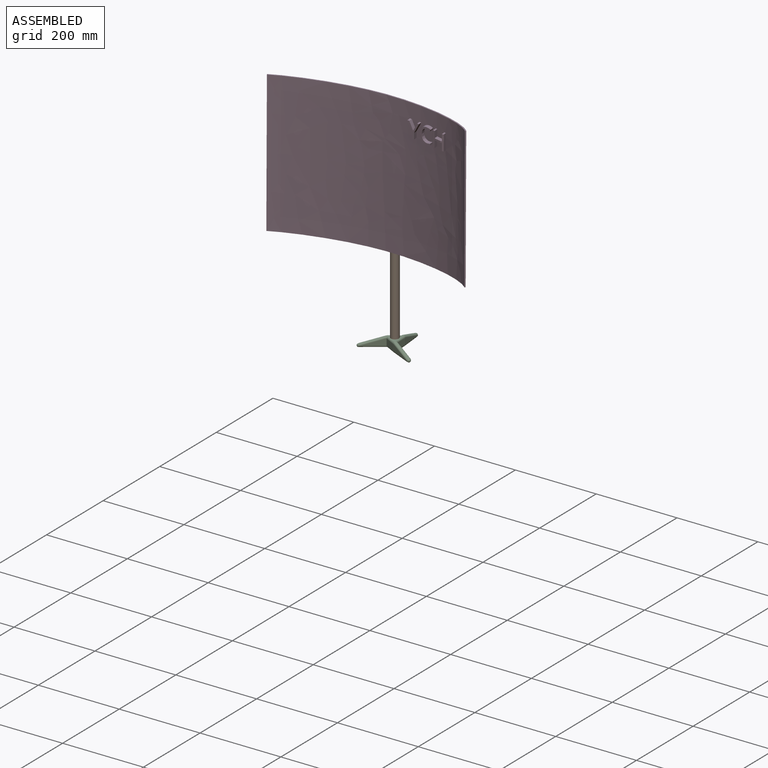
[diagram: assembled view]
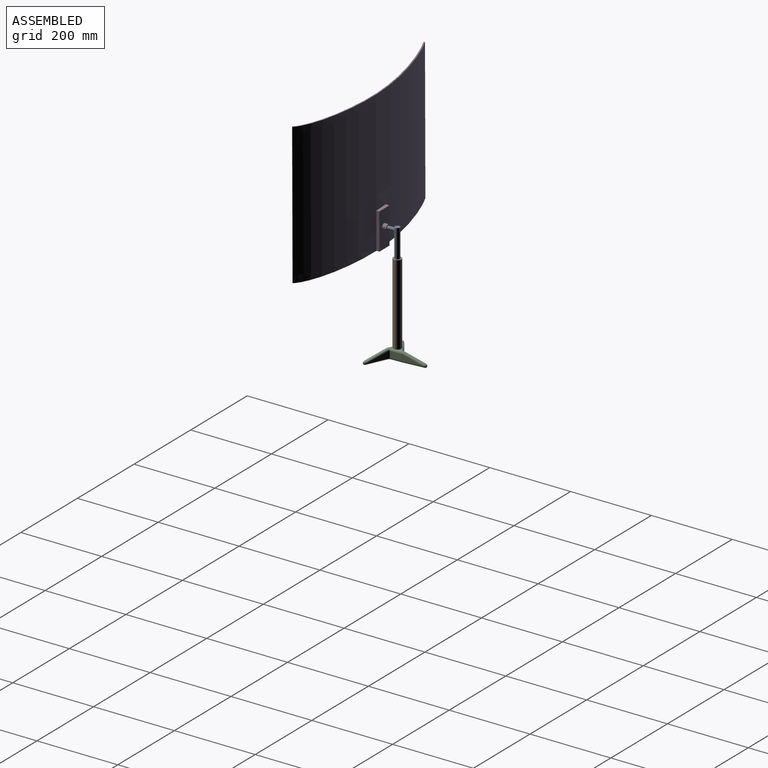
[diagram: assembled view, second angle]
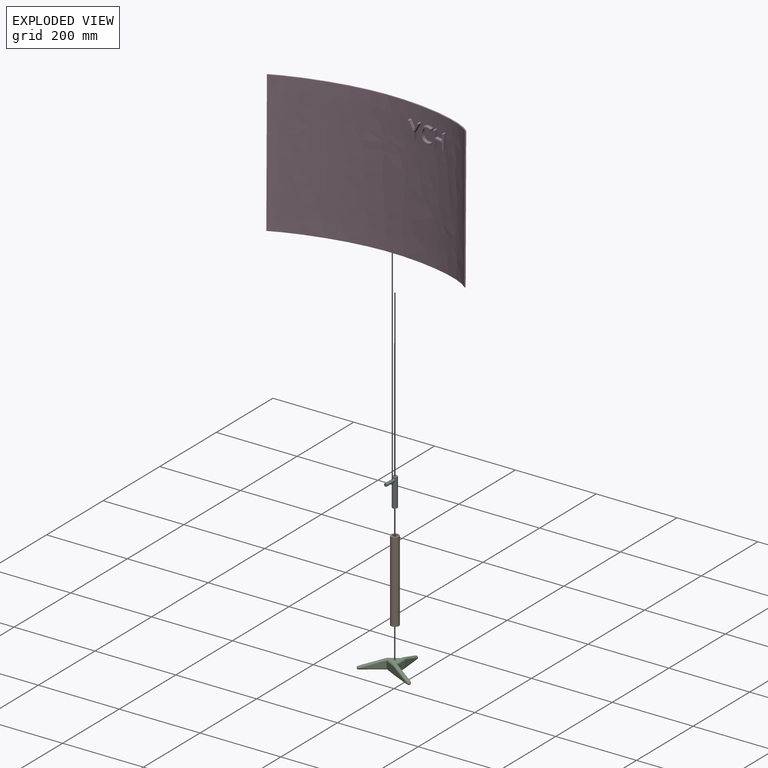
[diagram: exploded view]
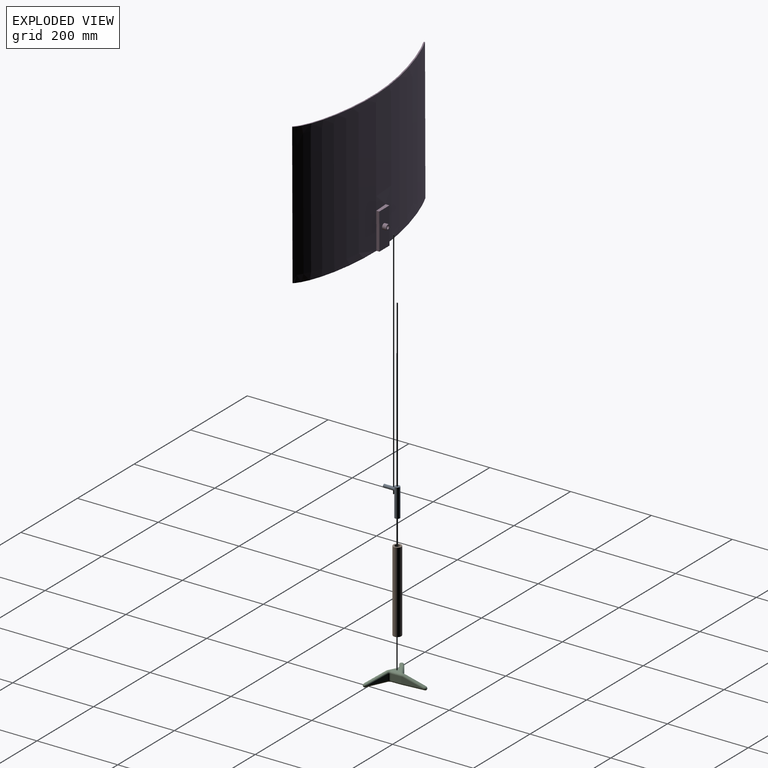
[diagram: exploded view, second angle]
ASSEMBLY  parts=4 mates=3
PART A: 5 faces, bbox 12.5x39.2x70 mm
  f0: cylinder r=6.25mm len=70mm, axis (0,0,-1), area 2695.4mm2, adj f1,f2,f4
  f1: plane 12.5x12.5mm, normal (0,0,1), area 122.7mm2, adj f0
  f2: plane 12.5x12.5mm, normal (0,0,-1), area 122.7mm2, adj f0
  f3: plane 8x8mm, normal (0,-1,0), area 50.3mm2, adj f4
  f4: cylinder r=4mm len=28.2mm, axis (0,-1,0), area 689.8mm2, adj f0,f3
PART B: 4 faces, bbox 20x20x200 mm
  f0: cylinder r=6.25mm len=200mm, axis (0,0,1), area 7854mm2, adj f2,f3
  f1: cylinder r=10mm len=200mm, axis (0,0,1), area 12566.4mm2, adj f2,f3
  f2: plane 20x20mm, normal (0,0,-1), area 191.4mm2, adj f0,f1
  f3: plane 20x20mm, normal (0,0,1), area 191.4mm2, adj f0,f1
PART C: 59 faces, bbox 136.8x119.8x27.5 mm
  f0: cylinder r=5mm len=4.71mm, axis (-0.09,1,0), area 9.1mm2, adj f2,f29,f56
  f1: plane 50.26x15mm, normal (-1,-0.09,0), area 402.1mm2, adj f3,f16,f24,f55
  f2: plane 50.11x15mm, normal (1,0.09,0), area 399.8mm2, adj f0,f24,f31,f58
  f3: cylinder r=5mm len=6.6mm, axis (-0.09,1,0), area 17.4mm2, adj f1,f15,f27,f52,f53
  f4: plane 47x21.5mm, normal (-0.42,-0.91,0), area 407.1mm2, adj f7,f17,f20,f47
  f5: plane 44.19x20.22mm, normal (0.42,0.91,0), area 360.8mm2, adj f20,f23,f44
  f6: plane 29.01x27.1mm, normal (0,0,1), area 340.9mm2, adj f8,f9,f15,f27,f50
  f7: cylinder r=5mm len=3.83mm, axis (-0.91,0.42,0), area 5.8mm2, adj f4,f8,f49,f51
  f8: cylinder r=5mm len=30.16mm, axis (-0.88,0.47,0), area 229.9mm2, adj f6,f7,f10,f14,f15,f17,f34,f51
  f9: torus R=10mm, axis (0,0,1), area 43.3mm2, adj f6,f23,f27,f48
  f10: cylinder r=5mm len=2.9mm, axis (-0.81,-0.58,0), area 3.6mm2, adj f8,f12,f36
  f11: plane 38.69x27.51mm, normal (-0.58,0.81,0), area 337.1mm2, adj f21,f32,f41
  f12: plane 42.77x30.41mm, normal (0.58,-0.81,0), area 411.1mm2, adj f10,f17,f21,f38
  f13: cylinder r=5mm len=1.3mm, axis (-0.81,-0.58,0), area 0.8mm2, adj f15,f32,f37,f39
  f14: cylinder r=5mm len=0.78mm, axis (-0.81,-0.58,0), area 0.1mm2, adj f8,f15,f35,f37
  f15: cylinder r=5mm len=29.36mm, axis (0.85,0.53,0), area 217.3mm2, adj f3,f6,f8,f13,f14,f16,f27,f32
  f16: plane 19.9x15mm, normal (-0.53,0.85,0), area 352mm2, adj f1,f15,f25,f32
  f17: plane 25.14x15mm, normal (-0.47,-0.88,0), area 427mm2, adj f4,f8,f12,f22
  f18: plane 25.22x15mm, normal (1,0.04,0), area 378.5mm2, adj f23,f27,f28,f31
  f19: plane 30.62x30.21mm, normal (0,0,-1), area 341.8mm2, adj f20,f22,f25,f26,f28
  f20: cylinder r=5mm len=54.14mm, axis (0.91,-0.42,0), area 819.7mm2, adj f4,f5,f19,f22,f26,f45
  f21: cylinder r=5mm len=55.13mm, axis (-0.81,-0.58,0), area 882.7mm2, adj f11,f12,f22,f25,f32,f40
  f22: cylinder r=5mm len=30.16mm, axis (0.88,-0.47,0), area 231.8mm2, adj f17,f19,f20,f21,f25
  f23: cylinder r=5mm len=15mm, axis (0,0,1), area 83mm2, adj f5,f9,f18,f26,f46
  f24: cylinder r=5mm len=57.37mm, axis (0.09,-1,0), area 835.3mm2, adj f1,f2,f25,f28,f30,f57
  f25: cylinder r=5mm len=29.36mm, axis (-0.85,-0.53,0), area 227.7mm2, adj f16,f19,f21,f22,f24,f28,f32
  f26: torus R=10mm, axis (0,0,1), area 59.3mm2, adj f19,f20,f23,f28
  f27: cylinder r=5mm len=25.39mm, axis (0.04,-1,0), area 197.9mm2, adj f3,f6,f9,f15,f18,f29,f52
  f28: cylinder r=5mm len=25.39mm, axis (-0.04,1,0), area 198mm2, adj f18,f19,f24,f25,f26,f30
  f29: sphere r=5mm, area 1.4mm2, adj f0,f27,f31,f54
  f30: sphere r=5mm, area 1.5mm2, adj f24,f28,f31
  f31: cylinder r=5mm len=15mm, axis (0,0,1), area 4.5mm2, adj f2,f18,f29,f30
  f32: plane 19.91x10.8mm, normal (-0.56,0.83,0), area 164.8mm2, adj f11,f13,f15,f16,f21,f25,f39,f41
  f33: plane 49.3x35.32mm, normal (-0.23,-0.17,0.96), area 181.5mm2, adj f34,f35,f36,f37,f38,f39,f40,f41
  f34: bspline ~4.45x2.55mm, area 6.1mm2, adj f8,f33,f35,f36
  f35: bspline ~1.19x0.73mm, area 0.4mm2, adj f14,f33,f34,f37
  f36: bspline ~6.22x5.59mm, area 15.4mm2, adj f10,f33,f34,f38
  f37: bspline ~4.87x3.31mm, area 11.3mm2, adj f13,f14,f15,f33,f35,f39
  f38: cylinder r=3.5mm len=43.71mm, axis (-0.78,-0.56,-0.29), area 287.7mm2, adj f12,f33,f36,f40
  f39: bspline ~4.31x4.04mm, area 12.1mm2, adj f13,f32,f33,f37,f41
  f40: bspline ~10.64x10.44mm, area 155.8mm2, adj f21,f33,f38,f41
  f41: cylinder r=3.5mm len=42.23mm, axis (0.78,0.56,0.29), area 286.7mm2, adj f11,f32,f33,f39,f40
  f42: plane 50.62x24.27mm, normal (0.27,-0.12,0.96), area 114.4mm2, adj f44,f45,f46,f47,f48,f49,f50,f51
  f43: plane 53.44x17mm, normal (-0.03,0.3,0.95), area 109.8mm2, adj f52,f53,f54,f55,f56,f57,f58
  f44: cylinder r=4mm len=45.1mm, axis (0.87,-0.4,-0.29), area 319.3mm2, adj f5,f42,f45,f46
  f45: bspline ~10.17x8.97mm, area 155.4mm2, adj f20,f42,f44,f47
  f46: bspline ~4.24x3.97mm, area 2.4mm2, adj f23,f42,f44,f48
  f47: cylinder r=4mm len=47.36mm, axis (-0.87,0.4,0.29), area 322.5mm2, adj f4,f42,f45,f49
  f48: bspline ~7x5.98mm, area 15.4mm2, adj f9,f42,f46,f50
  f49: bspline ~4.61x4.52mm, area 15.5mm2, adj f7,f42,f47,f51
  f50: cylinder r=4mm len=1.35mm, axis (0.42,0.91,0), area 0.8mm2, adj f6,f42,f48,f51
  f51: bspline ~3.78x2.46mm, area 4.3mm2, adj f7,f8,f42,f49,f50
  f52: bspline ~1.7x1.4mm, area 1.4mm2, adj f3,f27,f43,f53,f54
  f53: bspline ~5.27x5mm, area 19.3mm2, adj f3,f43,f52,f55
  f54: torus R=0.44mm, axis (-0.03,0.3,0.95), area 0.1mm2, adj f29,f43,f52,f56
  f55: cylinder r=4mm len=48.73mm, axis (-0.09,0.95,-0.3), area 312.1mm2, adj f1,f43,f53,f57
  f56: bspline ~4.83x4.49mm, area 17.8mm2, adj f0,f43,f54,f58
  f57: bspline ~10.02x8.81mm, area 153.3mm2, adj f24,f43,f55,f58
  f58: cylinder r=4mm len=48.03mm, axis (0.09,-0.95,0.3), area 312.1mm2, adj f2,f43,f56,f57
PART D: 54 faces, bbox 369.1x315.7x350.1 mm
  f0: extruded ~366.06x350mm, area 173950.5mm2, adj f2,f3,f4,f5,f14,f15,f16,f17
  f1: extruded ~368.33x350mm, area 173149.9mm2, adj f2,f3,f4,f5,f6,f8,f9
  f2: plane 350x2.91mm, normal (-0.97,0.24,0), area 1050mm2, adj f0,f1,f4,f5
  f3: plane 350x3mm, normal (0,-1,0), area 1050mm2, adj f0,f1,f4,f5
  f4: plane 369.06x315.67mm, normal (0,0,1), area 1504.1mm2, adj f0,f1,f2,f3
  f5: plane 369.06x315.67mm, normal (0,0,-1), area 1796.8mm2, adj f0,f1,f2,f3,f6,f7,f8
  f6: plane 90x5.53mm, normal (0.74,-0.67,0), area 668.9mm2, adj f1,f5,f7,f9
  f7: plane 90x26.63mm, normal (0.67,0.74,0), area 3073mm2, adj f5,f6,f8,f9,f11
  f8: plane 90x6.79mm, normal (-0.73,0.68,0), area 836.6mm2, adj f1,f5,f7,f9
  f9: plane 32.99x29.45mm, normal (0,0,1), area 292.7mm2, adj f1,f6,f7,f8
  f10: cylinder r=4mm len=12.79mm, axis (-0.67,-0.74,0), area 251.3mm2, adj f12,f13
  f11: cylinder r=6.86mm len=16.89mm, axis (-0.67,-0.74,0), area 431mm2, adj f7,f12
  f12: plane 13.72x10.21mm, normal (0.67,0.74,0), area 97.6mm2, adj f10,f11
  f13: plane 8x5.95mm, normal (0.67,0.74,0), area 50.3mm2, adj f10
  f14: plane 19.14x15.65mm, normal (0.71,-0.53,0.47), area 219.5mm2, adj f0,f15,f22,f53
  f15: plane 11.65x9.5mm, normal (0,0,1), area 49.2mm2, adj f0,f14,f16,f53
  f16: plane 23.65x17.54mm, normal (-0.7,0.53,-0.47), area 271.9mm2, adj f0,f15,f17,f53
  f17: plane 14.61x8.12mm, normal (-0.8,0.6,0), area 148.4mm2, adj f0,f16,f18,f53
  f18: plane 11.49x9.21mm, normal (0,0,-1), area 45.7mm2, adj f0,f17,f19,f53
  f19: plane 14.82x8.13mm, normal (0.8,-0.6,0), area 150.8mm2, adj f0,f18,f20,f53
  f20: plane 23.46x17.93mm, normal (0.7,-0.53,-0.48), area 271.7mm2, adj f0,f19,f21,f53
  f21: plane 11.85x9.39mm, normal (0,0,1), area 49.1mm2, adj f0,f20,f22,f53
  f22: plane 19.15x15.88mm, normal (-0.7,0.53,0.47), area 220.5mm2, adj f0,f14,f21,f53
  f23: extruded ~15.3x14.52mm, area 92.9mm2, adj f0,f24,f37,f52
  f24: plane 9.83x7.43mm, normal (0.72,-0.54,-0.44), area 44.1mm2, adj f0,f23,f25,f52
  f25: extruded ~16.8x16.28mm, area 111.9mm2, adj f0,f24,f26,f52
  f26: extruded ~16.04x15.47mm, area 105.2mm2, adj f0,f25,f27,f52
  f27: extruded ~13.19x12.14mm, area 97.4mm2, adj f0,f26,f28,f52
  f28: extruded ~10.34x9.89mm, area 109.2mm2, adj f0,f27,f29,f52
  f29: extruded ~14.56x11.76mm, area 159.9mm2, adj f0,f28,f30,f52
  f30: extruded ~18.54x18.46mm, area 148.5mm2, adj f0,f29,f31,f52
  f31: extruded ~16.21x15.59mm, area 103mm2, adj f0,f30,f32,f52
  f32: plane 8.28x6.24mm, normal (0.8,-0.6,0), area 40.3mm2, adj f0,f31,f33,f52
  f33: extruded ~15.66x14.95mm, area 95.8mm2, adj f0,f32,f34,f52
  f34: extruded ~16.2x15.67mm, area 115.1mm2, adj f0,f33,f35,f52
  f35: extruded ~11.58x10.96mm, area 126.9mm2, adj f0,f34,f36,f52
  f36: extruded ~11.48x11.06mm, area 126.4mm2, adj f0,f35,f37,f52
  f37: extruded ~16.14x15.59mm, area 114.7mm2, adj f0,f23,f36,f52
  f38: plane 38.2x6mm, normal (0.8,-0.6,0), area 287.1mm2, adj f0,f39,f49,f50
  f39: plane 9.94x8.07mm, normal (0,0,1), area 36.9mm2, adj f0,f38,f40,f50
  f40: plane 16.25x7.26mm, normal (-0.8,0.6,0), area 147.9mm2, adj f0,f39,f41,f50
  f41: plane 24.6x18.51mm, normal (0,0,1), area 208.5mm2, adj f0,f40,f42,f50,f51
  f42: plane 16.25x8.34mm, normal (0.8,-0.6,0), area 169.7mm2, adj f0,f41,f43,f51
  f43: plane 12.05x9.03mm, normal (0,0,1), area 46.3mm2, adj f0,f42,f44,f51
  f44: plane 38.2x8.32mm, normal (-0.8,0.6,0), area 397.8mm2, adj f0,f43,f45,f51
  f45: plane 12.05x9.03mm, normal (0,0,-1), area 46.3mm2, adj f0,f44,f46,f51
  f46: plane 17.98x8.34mm, normal (0.8,-0.6,0), area 187.7mm2, adj f0,f45,f47,f51
  f47: plane 24.6x18.51mm, normal (0,0,-1), area 208.5mm2, adj f0,f46,f48,f50,f51
  f48: plane 17.98x7.26mm, normal (-0.8,0.6,0), area 163.5mm2, adj f0,f47,f49,f50
  f49: plane 9.94x8.07mm, normal (0,0,-1), area 36.9mm2, adj f0,f38,f48,f50
  f50: plane 38.2x6.97mm, normal (-0.6,-0.8,0), area 186.6mm2, adj f38,f39,f40,f41,f47,f48,f49,f51
  f51: extruded ~38.2x17.37mm, area 243.2mm2, adj f41,f42,f43,f44,f45,f46,f47,f50
  f52: extruded ~39.27x23.12mm, area 328.4mm2, adj f23,f24,f25,f26,f27,f28,f29,f30
  f53: extruded ~38.2x22.5mm, area 281.7mm2, adj f14,f15,f16,f17,f18,f19,f20,f21
PLACE A rot(axis=(0.17,0.17,-0.97),0deg) t=(-32.27,216.17,202.07)mm
PLACE B t=(-32.27,249.17,162.07)mm
PLACE C t=(-32.41,249.37,-62.93)mm fixed
PLACE D rot(axis=(0,0.01,1),41.9deg) t=(-32.48,206.58,173.97)mm
MATE fastened C.f6 <-> B.f1  axis (0,0,1) through (-32.27,249.17,-37.93)mm
MATE revolute D.f10 <-> A.f4  axis (0,1,0) through (-32.27,216.17,224.59)mm
MATE slider B.f1 <-> A.f0  axis (0,0,1) through (-32.27,249.17,162.07)mm
